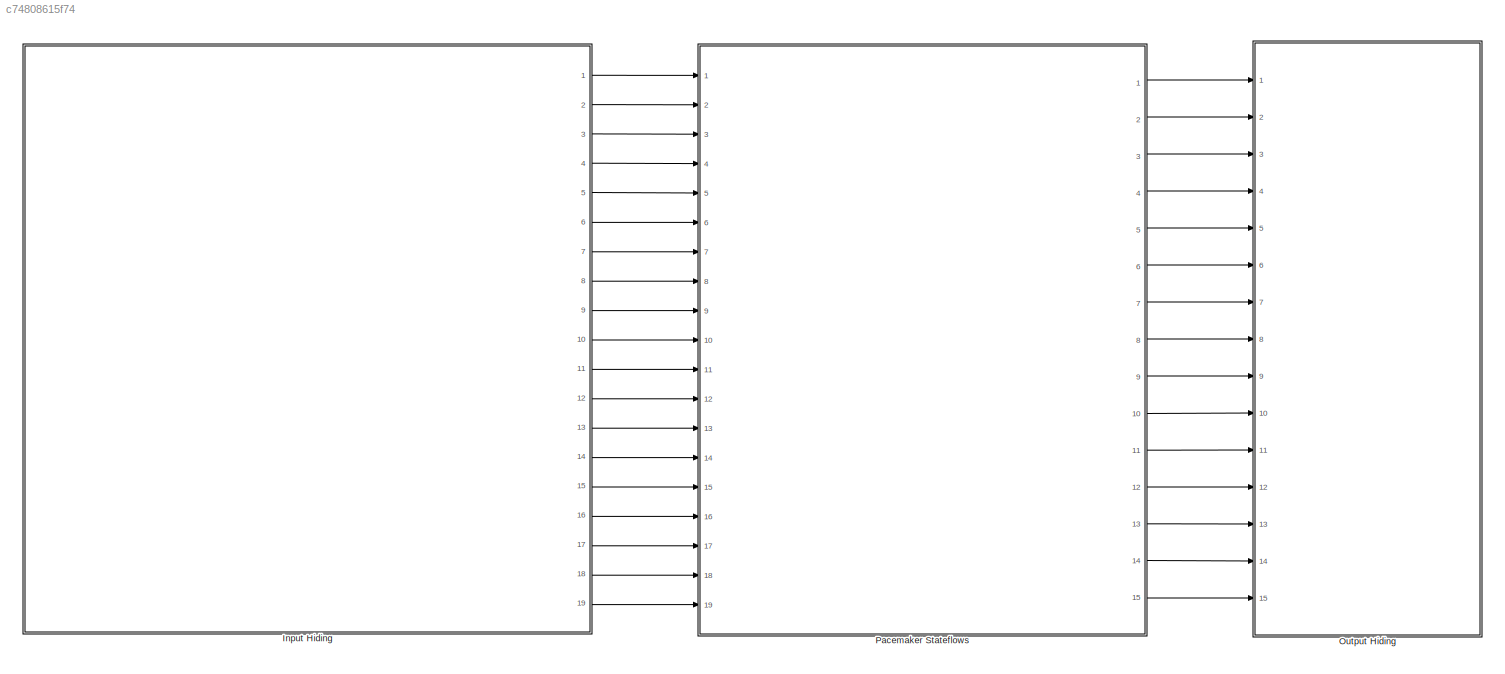
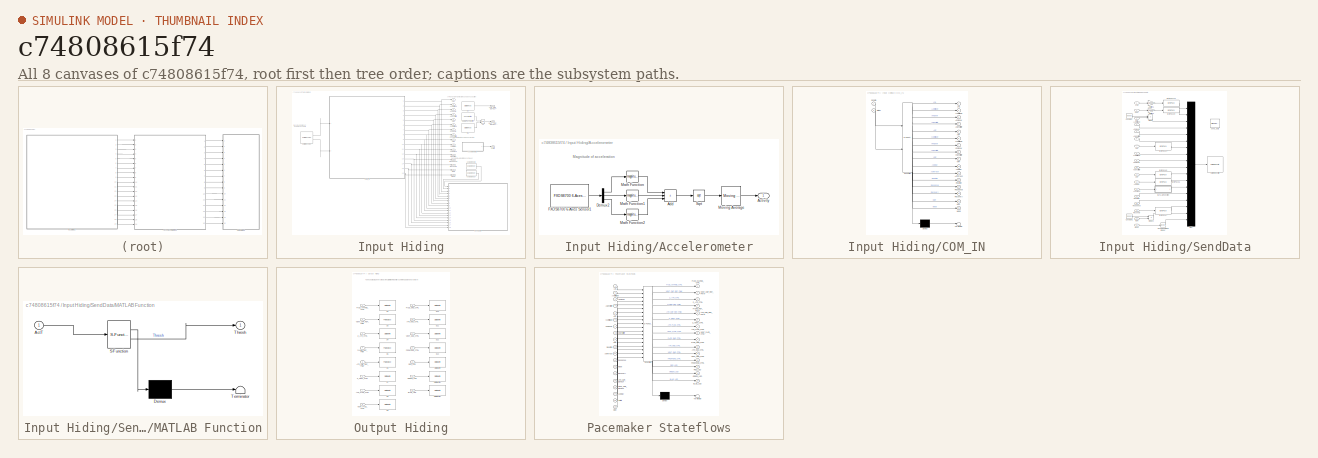
[diagram: thumbnail index - all 8 canvases of the model, root first then tree order]
MODEL slx_c74808615f74
KIND model
CONFIG AbsTol = auto
CONFIG EnableMultiTasking = on
CONFIG FixedStep = 1e-3
CONFIG MaxStep = auto
CONFIG MinStep = auto
CONFIG RelTol = 1e-3
CONFIG SampleTimeConstraint = Unconstrained
CONFIG SolverName = FixedStepAuto
CONFIG StartTime = 0.0
CONFIG StopTime = 10.0
BLOCK [SubSystem] Input Hiding
  Ports = [0, 19]
  RequestExecContextInheritance = off
BLOCK [Outport] Input Hiding/AAmplitude
  OutDataTypeStr = uint8
  Port = 2
BLOCK [Outport] Input Hiding/APulseW
  OutDataTypeStr = uint8
  Port = 3
BLOCK [Outport] Input Hiding/ARP
  OutDataTypeStr = uint16
  Port = 5
BLOCK [Outport] Input Hiding/ASensitivity
  OutDataTypeStr = uint8
  Port = 4
BLOCK [Outport] Input Hiding/ATR_CMP_DETECT
  OutDataTypeStr = boolean
  Port = 17
BLOCK [Outport] Input Hiding/AVDelay
  OutDataTypeStr = uint16
  Port = 10
BLOCK [SubSystem] Input Hiding/Accelerometer
  Ports = [0, 1]
  RequestExecContextInheritance = off
BLOCK [Outport] Input Hiding/Accelerometer/Activity
  OutDataTypeStr = double
  SourceOfInitialOutputValue = Input signal
BLOCK [Sum] Input Hiding/Accelerometer/Add
  IconShape = rectangular
  Inputs = +++
  Ports = [3, 1]
BLOCK [Demux] Input Hiding/Accelerometer/Demux2
  Outputs = 3
  Ports = [1, 3]
BLOCK [Reference] Input Hiding/Accelerometer/FXOS8700 6-Axes Sensor1  REF=frdmk64flib/FXOS8700 6-Axes Sensor
  Ports = [0, 1]
  SourceBlock = frdmk64flib/FXOS8700 6-Axes Sensor
  SourceProductBaseCode = EC_FRDM_K64F
  SourceType = freedomk64f.fxos8700
BLOCK [Math] Input Hiding/Accelerometer/Math Function
  Operator = magnitude^2
  OutDataTypeStr = double
  Ports = [1, 1]
  SignedPower = on
BLOCK [Math] Input Hiding/Accelerometer/Math Function1
  Operator = magnitude^2
  OutDataTypeStr = double
  Ports = [1, 1]
  SignedPower = on
BLOCK [Math] Input Hiding/Accelerometer/Math Function2
  Operator = magnitude^2
  OutDataTypeStr = double
  Ports = [1, 1]
  SignedPower = on
BLOCK [Reference] Input Hiding/Accelerometer/Moving Average  REF=dspstat3/Moving
Average
  Ports = [1, 1]
  SourceBlock = dspstat3/Moving\nAverage
  SourceProductBaseCode = DS
  SourceType = dsp.simulink.MovingAverage
BLOCK [Sqrt] Input Hiding/Accelerometer/Sqrt
BLOCK [Outport] Input Hiding/ActThresh
  OutDataTypeStr = double
  Port = 11
BLOCK [Outport] Input Hiding/Activity
  OutDataTypeStr = double
  Port = 19
BLOCK [Reference] Input Hiding/Analog Input  REF=frdmk64flib/Analog Input
  Ports = [0, 1]
  SourceBlock = frdmk64flib/Analog Input
  SourceProductBaseCode = EC_FRDM_K64F
  SourceType = freedomk64f.AnalogInput
BLOCK [Reference] Input Hiding/Analog Input1  REF=frdmk64flib/Analog Input
  Ports = [0, 1]
  SourceBlock = frdmk64flib/Analog Input
  SourceProductBaseCode = EC_FRDM_K64F
  SourceType = freedomk64f.AnalogInput
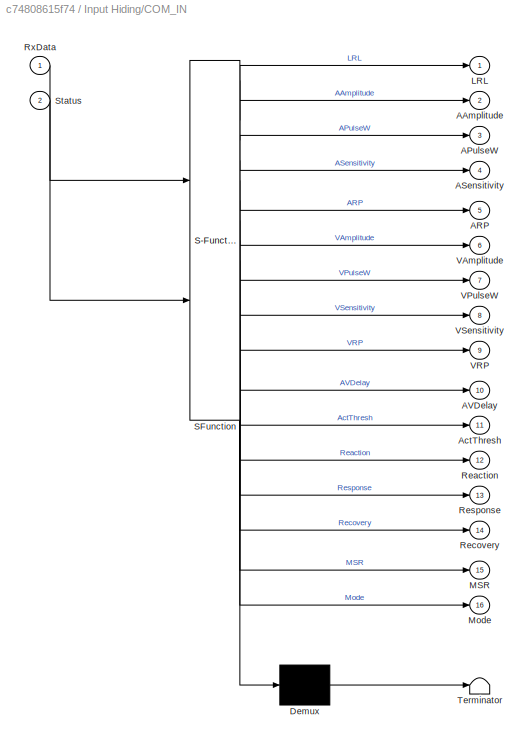
BLOCK [SubSystem] Input Hiding/COM_IN
  ErrorFcn = Stateflow.Translate.translate
  PermitHierarchicalResolution = ExplicitOnly
  Ports = [2, 16]
  RequestExecContextInheritance = off
  SFBlockType = Chart
  TreatAsAtomicUnit = on
BLOCK [Demux] Input Hiding/COM_IN/ Demux 
  Outputs = 1
  Ports = [1, 1]
BLOCK [S-Function] Input Hiding/COM_IN/ SFunction 
  EnableBusSupport = on
  FunctionName = sf_sfun
  PortCounts = [2 17]
  Ports = [2, 17]
  SFcnIsStateOwnerBlock = off
  SFunctionDeploymentMode = off
  Tag = Stateflow S-Function 4
BLOCK [Terminator] Input Hiding/COM_IN/ Terminator 
BLOCK [Outport] Input Hiding/COM_IN/AAmplitude
  Port = 2
BLOCK [Outport] Input Hiding/COM_IN/APulseW
  Port = 3
BLOCK [Outport] Input Hiding/COM_IN/ARP
  Port = 5
BLOCK [Outport] Input Hiding/COM_IN/ASensitivity
  Port = 4
BLOCK [Outport] Input Hiding/COM_IN/AVDelay
  Port = 10
BLOCK [Outport] Input Hiding/COM_IN/ActThresh
  Port = 11
BLOCK [Outport] Input Hiding/COM_IN/LRL
BLOCK [Outport] Input Hiding/COM_IN/MSR
  Port = 15
BLOCK [Outport] Input Hiding/COM_IN/Mode
  Port = 16
BLOCK [Outport] Input Hiding/COM_IN/Reaction
  Port = 12
BLOCK [Outport] Input Hiding/COM_IN/Recovery
  Port = 14
BLOCK [Outport] Input Hiding/COM_IN/Response
  Port = 13
BLOCK [Inport] Input Hiding/COM_IN/RxData
BLOCK [Inport] Input Hiding/COM_IN/Status
  Port = 2
BLOCK [Outport] Input Hiding/COM_IN/VAmplitude
  Port = 6
BLOCK [Outport] Input Hiding/COM_IN/VPulseW
  Port = 7
BLOCK [Outport] Input Hiding/COM_IN/VRP
  Port = 9
BLOCK [Outport] Input Hiding/COM_IN/VSensitivity
  Port = 8
BLOCK [Reference] Input Hiding/D0  REF=frdmk64flib/Digital Read
  Ports = [0, 1]
  SourceBlock = frdmk64flib/Digital Read
  SourceProductBaseCode = EC_FRDM_K64F
  SourceType = freedomk64f.DigitalRead
BLOCK [Reference] Input Hiding/D1  REF=frdmk64flib/Digital Read
  Ports = [0, 1]
  SourceBlock = frdmk64flib/Digital Read
  SourceProductBaseCode = EC_FRDM_K64F
  SourceType = freedomk64f.DigitalRead
BLOCK [Outport] Input Hiding/LRL
  OutDataTypeStr = uint16
BLOCK [Outport] Input Hiding/MSR
  OutDataTypeStr = uint16
  Port = 15
BLOCK [Outport] Input Hiding/Mode
  OutDataTypeStr = uint8
  Port = 16
BLOCK [Reference] Input Hiding/Natural Pace Button  REF=frdmk64flib/Push Button
  Ports = [0, 1]
  SourceBlock = frdmk64flib/Push Button
  SourceProductBaseCode = EC_FRDM_K64F
  SourceType = freedomk64f.PushButton
BLOCK [Logic] Input Hiding/OR
  AllPortsSameDT = off
  IconShape = distinctive
  Operator = OR
  OutDataTypeStr = boolean
  Ports = [2, 1]
BLOCK [Outport] Input Hiding/Reaction
  OutDataTypeStr = uint8
  Port = 12
BLOCK [Outport] Input Hiding/Recovery
  OutDataTypeStr = uint16
  Port = 14
BLOCK [Outport] Input Hiding/Response
  OutDataTypeStr = uint8
  Port = 13
BLOCK [SubSystem] Input Hiding/SendData
  Ports = [18, 0, 0, 1]
  RequestExecContextInheritance = off
  TreatAsAtomicUnit = on
BLOCK [Inport] Input Hiding/SendData/AAmplitude
  Port = 4
BLOCK [Inport] Input Hiding/SendData/APulseW
  Port = 5
BLOCK [Inport] Input Hiding/SendData/ARP
  Port = 7
BLOCK [Inport] Input Hiding/SendData/ASensitivity
  Port = 6
BLOCK [Inport] Input Hiding/SendData/ATR
BLOCK [Inport] Input Hiding/SendData/AVDelay
  Port = 12
BLOCK [Inport] Input Hiding/SendData/ActThresh
  Port = 13
BLOCK [Reference] Input Hiding/SendData/Byte Pack10  REF=etargetslib/Byte Pack
  Ports = [1, 1]
  SourceBlock = etargetslib/Byte Pack
  SourceProductBaseCode = ME
  SourceType = Byte pack
BLOCK [Reference] Input Hiding/SendData/Byte Pack4  REF=etargetslib/Byte Pack
  Ports = [1, 1]
  SourceBlock = etargetslib/Byte Pack
  SourceProductBaseCode = ME
  SourceType = Byte pack
BLOCK [Reference] Input Hiding/SendData/Byte Pack5  REF=etargetslib/Byte Pack
  Ports = [1, 1]
  SourceBlock = etargetslib/Byte Pack
  SourceProductBaseCode = ME
  SourceType = Byte pack
BLOCK [Reference] Input Hiding/SendData/Byte Pack6  REF=etargetslib/Byte Pack
  Ports = [1, 1]
  SourceBlock = etargetslib/Byte Pack
  SourceProductBaseCode = ME
  SourceType = Byte pack
BLOCK [Reference] Input Hiding/SendData/Byte Pack7  REF=etargetslib/Byte Pack
  Ports = [1, 1]
  SourceBlock = etargetslib/Byte Pack
  SourceProductBaseCode = ME
  SourceType = Byte pack
BLOCK [Reference] Input Hiding/SendData/Byte Pack9  REF=etargetslib/Byte Pack
  Ports = [1, 1]
  SourceBlock = etargetslib/Byte Pack
  SourceProductBaseCode = ME
  SourceType = Byte pack
BLOCK [Constant] Input Hiding/SendData/Constant
  Value = 60000
BLOCK [Constant] Input Hiding/SendData/Constant1
  Value = 60000
BLOCK [Reference] Input Hiding/SendData/Decrement Stored Integer  REF=simulink/Additional Math
& Discrete/Additional Math:
Increment - Decrement/Decrement
Stored Integer
  Ports = [1, 1]
  SourceBlock = simulink/Additional Math\n& Discrete/Additional Math:\nIncrement - Decrement/Decrement\nStored Integer
  SourceProductBaseCode = SL
  SourceType = Stored Integer Value Decrement
BLOCK [Product] Input Hiding/SendData/Divide
  Inputs = */
  OutDataTypeStr = uint8
  Ports = [2, 1]
BLOCK [Product] Input Hiding/SendData/Divide1
  Inputs = */
  OutDataTypeStr = uint8
  Ports = [2, 1]
BLOCK [Inport] Input Hiding/SendData/LRL
  Port = 3
BLOCK [SubSystem] Input Hiding/SendData/MATLAB Function
  ErrorFcn = Stateflow.Translate.translate
  PermitHierarchicalResolution = ExplicitOnly
  Ports = [1, 1]
  RequestExecContextInheritance = off
  SFBlockType = MATLAB Function
  TreatAsAtomicUnit = on
BLOCK [Demux] Input Hiding/SendData/MATLAB Function/ Demux 
  Outputs = 1
  Ports = [1, 1]
BLOCK [S-Function] Input Hiding/SendData/MATLAB Function/ SFunction 
  EnableBusSupport = on
  FunctionName = sf_sfun
  PortCounts = [1 2]
  Ports = [1, 2]
  SFcnIsStateOwnerBlock = off
  SFunctionDeploymentMode = off
  Tag = Stateflow S-Function 2
BLOCK [Terminator] Input Hiding/SendData/MATLAB Function/ Terminator 
BLOCK [Inport] Input Hiding/SendData/MATLAB Function/ActT
BLOCK [Outport] Input Hiding/SendData/MATLAB Function/Thresh
BLOCK [Inport] Input Hiding/SendData/MSR
  Port = 17
BLOCK [Inport] Input Hiding/SendData/Mode
  Port = 18
BLOCK [Gain] Input Hiding/SendData/Multiply1
  Gain = 10000
  OutDataTypeStr = uint16
BLOCK [Gain] Input Hiding/SendData/Multiply2
  Gain = 10000
  OutDataTypeStr = uint16
BLOCK [Mux] Input Hiding/SendData/Mux
  DisplayOption = bar
  Inputs = 18
  Ports = [18, 1]
BLOCK [Inport] Input Hiding/SendData/Reaction
  Port = 14
BLOCK [Inport] Input Hiding/SendData/Recovery
  Port = 16
BLOCK [Inport] Input Hiding/SendData/Response
  Port = 15
BLOCK [Reference] Input Hiding/SendData/Serial Transmit1  REF=frdmk64flib/Serial Transmit
  Ports = [1]
  SourceBlock = frdmk64flib/Serial Transmit
  SourceProductBaseCode = EC_FRDM_K64F
  SourceType = freedomk64f.SCIWrite
BLOCK [Inport] Input Hiding/SendData/VAmplitude
  Port = 8
BLOCK [Inport] Input Hiding/SendData/VENT
  Port = 2
BLOCK [Inport] Input Hiding/SendData/VPulseW
  Port = 9
BLOCK [Inport] Input Hiding/SendData/VRP
  Port = 11
BLOCK [Inport] Input Hiding/SendData/VSensitivity
  Port = 10
BLOCK [TriggerPort] Input Hiding/SendData/send_data
  FunctionName = send_data
  IsSimulinkFunction = on
  Ports = []
  StatesWhenEnabling = held
  TriggerType = function-call
  VariantControl = Variant
BLOCK [Reference] Input Hiding/Serial Receive  REF=frdmk64flib/Serial Receive
  Ports = [0, 2]
  SourceBlock = frdmk64flib/Serial Receive
  SourceProductBaseCode = EC_FRDM_K64F
  SourceType = freedomk64f.SCIRead
BLOCK [Outport] Input Hiding/VAmplitude
  OutDataTypeStr = uint8
  Port = 6
BLOCK [Outport] Input Hiding/VENT_CMP_DETECT
  OutDataTypeStr = boolean
  Port = 18
BLOCK [Outport] Input Hiding/VPulseW
  OutDataTypeStr = uint8
  Port = 7
BLOCK [Outport] Input Hiding/VRP
  OutDataTypeStr = uint16
  Port = 9
BLOCK [Outport] Input Hiding/VSensitivity
  OutDataTypeStr = uint8
  Port = 8
BLOCK [SubSystem] Output Hiding
  Ports = [15]
  RequestExecContextInheritance = off
BLOCK [Inport] Output Hiding/ATR_CMP_REF_PWM
  OutDataTypeStr = uint8
  Port = 5
BLOCK [Inport] Output Hiding/ATR_GND_CTRL
  OutDataTypeStr = boolean
  Port = 10
BLOCK [Inport] Output Hiding/ATR_PACE_CTRL
  OutDataTypeStr = boolean
  Port = 7
BLOCK [Inport] Output Hiding/BLUE_LED
  OutDataTypeStr = boolean
  Port = 15
BLOCK [Reference] Output Hiding/D10  REF=frdmk64flib/Digital Write
  Ports = [1]
  SourceBlock = frdmk64flib/Digital Write
  SourceProductBaseCode = EC_FRDM_K64F
  SourceType = freedomk64f.DigitalWrite
BLOCK [Reference] Output Hiding/D11  REF=frdmk64flib/Digital Write
  Ports = [1]
  SourceBlock = frdmk64flib/Digital Write
  SourceProductBaseCode = EC_FRDM_K64F
  SourceType = freedomk64f.DigitalWrite
BLOCK [Reference] Output Hiding/D12  REF=frdmk64flib/Digital Write
  Ports = [1]
  SourceBlock = frdmk64flib/Digital Write
  SourceProductBaseCode = EC_FRDM_K64F
  SourceType = freedomk64f.DigitalWrite
BLOCK [Reference] Output Hiding/D13  REF=frdmk64flib/Digital Write
  Ports = [1]
  SourceBlock = frdmk64flib/Digital Write
  SourceProductBaseCode = EC_FRDM_K64F
  SourceType = freedomk64f.DigitalWrite
BLOCK [Reference] Output Hiding/D2  REF=frdmk64flib/Digital Write
  Ports = [1]
  SourceBlock = frdmk64flib/Digital Write
  SourceProductBaseCode = EC_FRDM_K64F
  SourceType = freedomk64f.DigitalWrite
BLOCK [Reference] Output Hiding/D3  REF=frdmk64flib/PWM Output
  Ports = [1]
  SourceBlock = frdmk64flib/PWM Output
  SourceProductBaseCode = EC_FRDM_K64F
  SourceType = freedomk64f.PWMOutput
BLOCK [Reference] Output Hiding/D4  REF=frdmk64flib/Digital Write
  Ports = [1]
  SourceBlock = frdmk64flib/Digital Write
  SourceProductBaseCode = EC_FRDM_K64F
  SourceType = freedomk64f.DigitalWrite
BLOCK [Reference] Output Hiding/D5  REF=frdmk64flib/PWM Output
  Ports = [1]
  SourceBlock = frdmk64flib/PWM Output
  SourceProductBaseCode = EC_FRDM_K64F
  SourceType = freedomk64f.PWMOutput
BLOCK [Reference] Output Hiding/D6  REF=frdmk64flib/PWM Output
  Ports = [1]
  SourceBlock = frdmk64flib/PWM Output
  SourceProductBaseCode = EC_FRDM_K64F
  SourceType = freedomk64f.PWMOutput
BLOCK [Reference] Output Hiding/D7  REF=frdmk64flib/Digital Write
  Ports = [1]
  SourceBlock = frdmk64flib/Digital Write
  SourceProductBaseCode = EC_FRDM_K64F
  SourceType = freedomk64f.DigitalWrite
BLOCK [Reference] Output Hiding/D8   REF=frdmk64flib/Digital Write
  Ports = [1]
  SourceBlock = frdmk64flib/Digital Write
  SourceProductBaseCode = EC_FRDM_K64F
  SourceType = freedomk64f.DigitalWrite
BLOCK [Reference] Output Hiding/D9  REF=frdmk64flib/Digital Write
  Ports = [1]
  SourceBlock = frdmk64flib/Digital Write
  SourceProductBaseCode = EC_FRDM_K64F
  SourceType = freedomk64f.DigitalWrite
BLOCK [Reference] Output Hiding/Digital Write  REF=frdmk64flib/Digital Write
  Ports = [1]
  SourceBlock = frdmk64flib/Digital Write
  SourceProductBaseCode = EC_FRDM_K64F
  SourceType = freedomk64f.DigitalWrite
BLOCK [Reference] Output Hiding/Digital Write1  REF=frdmk64flib/Digital Write
  Ports = [1]
  SourceBlock = frdmk64flib/Digital Write
  SourceProductBaseCode = EC_FRDM_K64F
  SourceType = freedomk64f.DigitalWrite
BLOCK [Reference] Output Hiding/Digital Write2  REF=frdmk64flib/Digital Write
  Ports = [1]
  SourceBlock = frdmk64flib/Digital Write
  SourceProductBaseCode = EC_FRDM_K64F
  SourceType = freedomk64f.DigitalWrite
BLOCK [Inport] Output Hiding/FRONTEND_CTRL
  OutDataTypeStr = boolean
  Port = 12
BLOCK [Inport] Output Hiding/GREEN_LED
  OutDataTypeStr = boolean
  Port = 14
BLOCK [Inport] Output Hiding/PACE_CHARGE_CTRL
  OutDataTypeStr = boolean
BLOCK [Inport] Output Hiding/PACE_GND_CTRL
  OutDataTypeStr = boolean
  Port = 9
BLOCK [Inport] Output Hiding/PACING_REF_PWM
  OutDataTypeStr = uint8
  Port = 4
BLOCK [Inport] Output Hiding/RED_LED
  OutDataTypeStr = boolean
  Port = 13
BLOCK [Inport] Output Hiding/VENT_CMP_REF_PWM
  OutDataTypeStr = uint8
  Port = 2
BLOCK [Inport] Output Hiding/VENT_GND_CTRL
  OutDataTypeStr = boolean
  Port = 11
BLOCK [Inport] Output Hiding/VENT_PACE_CTRL
  OutDataTypeStr = boolean
  Port = 8
BLOCK [Inport] Output Hiding/Z_ATR_CTRL
  OutDataTypeStr = boolean
  Port = 3
BLOCK [Inport] Output Hiding/Z_VENT_CTRL
  OutDataTypeStr = boolean
  Port = 6
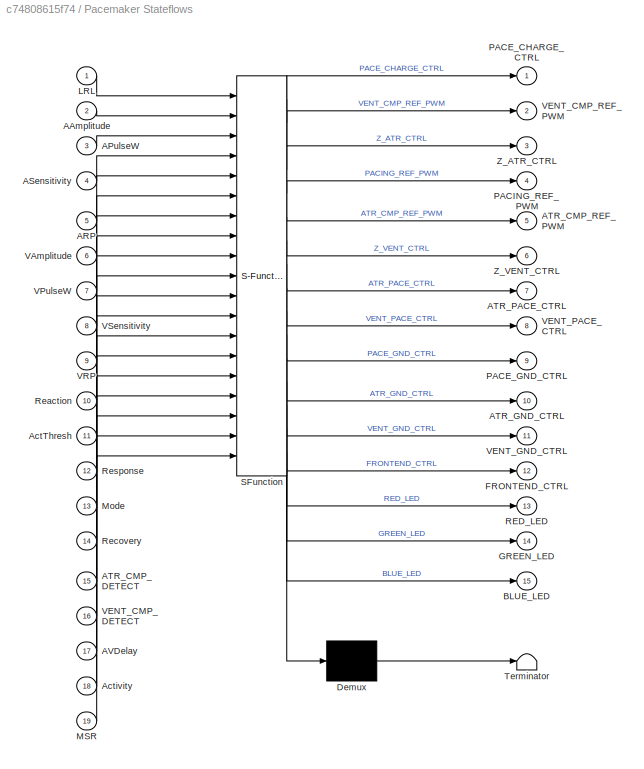
BLOCK [SubSystem] Pacemaker Stateflows
  ErrorFcn = Stateflow.Translate.translate
  PermitHierarchicalResolution = ExplicitOnly
  PortSchema = {"entries":[{"content":{"sides":[{"content":{"connectorIds":["In1","In2","In3","In4","In5","In6","In7","In8","In9","In17","In11","In10","In12","In14","In19","In13","In15","In16","In18"]},"type":"ConnectorPlacement.EquallySpacedRectSide","uuid":"6f24296b-9994-4871-8227-e053a3629335"},{"content":{"connectorIds":["Out1","Out2","Out3","Out4","Out5","Out6","Out7","Out8","Out9","Out10","Out11","Out12","...<+462ch>
  Ports = [19, 15]
  RequestExecContextInheritance = off
  SFBlockType = Chart
  TreatAsAtomicUnit = on
BLOCK [Demux] Pacemaker Stateflows/ Demux 
  Outputs = 1
  Ports = [1, 1]
BLOCK [S-Function] Pacemaker Stateflows/ SFunction 
  EnableBusSupport = on
  FunctionName = sf_sfun
  PortCounts = [19 16]
  Ports = [19, 16]
  SFcnIsStateOwnerBlock = off
  SFunctionDeploymentMode = off
  Tag = Stateflow S-Function 3
BLOCK [Terminator] Pacemaker Stateflows/ Terminator 
BLOCK [Inport] Pacemaker Stateflows/AAmplitude
  Port = 2
BLOCK [Inport] Pacemaker Stateflows/APulseW
  Port = 3
BLOCK [Inport] Pacemaker Stateflows/ARP
  Port = 5
BLOCK [Inport] Pacemaker Stateflows/ASensitivity
  Port = 4
BLOCK [Inport] Pacemaker Stateflows/ATR_CMP_DETECT
  Port = 15
BLOCK [Outport] Pacemaker Stateflows/ATR_CMP_REF_PWM
  Port = 5
BLOCK [Outport] Pacemaker Stateflows/ATR_GND_CTRL
  Port = 10
BLOCK [Outport] Pacemaker Stateflows/ATR_PACE_CTRL
  Port = 7
BLOCK [Inport] Pacemaker Stateflows/AVDelay
  Port = 17
BLOCK [Inport] Pacemaker Stateflows/ActThresh
  Port = 11
BLOCK [Inport] Pacemaker Stateflows/Activity
  Port = 18
BLOCK [Outport] Pacemaker Stateflows/BLUE_LED
  Port = 15
BLOCK [Outport] Pacemaker Stateflows/FRONTEND_CTRL
  Port = 12
BLOCK [Outport] Pacemaker Stateflows/GREEN_LED
  Port = 14
BLOCK [Inport] Pacemaker Stateflows/LRL
BLOCK [Inport] Pacemaker Stateflows/MSR
  Port = 19
BLOCK [Inport] Pacemaker Stateflows/Mode
  Port = 13
BLOCK [Outport] Pacemaker Stateflows/PACE_CHARGE_CTRL
BLOCK [Outport] Pacemaker Stateflows/PACE_GND_CTRL
  Port = 9
BLOCK [Outport] Pacemaker Stateflows/PACING_REF_PWM
  Port = 4
BLOCK [Outport] Pacemaker Stateflows/RED_LED
  Port = 13
BLOCK [Inport] Pacemaker Stateflows/Reaction
  Port = 10
BLOCK [Inport] Pacemaker Stateflows/Recovery
  Port = 14
BLOCK [Inport] Pacemaker Stateflows/Response
  Port = 12
BLOCK [Inport] Pacemaker Stateflows/VAmplitude
  Port = 6
BLOCK [Inport] Pacemaker Stateflows/VENT_CMP_DETECT
  Port = 16
BLOCK [Outport] Pacemaker Stateflows/VENT_CMP_REF_PWM
  Port = 2
BLOCK [Outport] Pacemaker Stateflows/VENT_GND_CTRL
  Port = 11
BLOCK [Outport] Pacemaker Stateflows/VENT_PACE_CTRL
  Port = 8
BLOCK [Inport] Pacemaker Stateflows/VPulseW
  Port = 7
BLOCK [Inport] Pacemaker Stateflows/VRP
  Port = 9
BLOCK [Inport] Pacemaker Stateflows/VSensitivity
  Port = 8
BLOCK [Outport] Pacemaker Stateflows/Z_ATR_CTRL
  Port = 3
BLOCK [Outport] Pacemaker Stateflows/Z_VENT_CTRL
  Port = 6
ANNOTATION Input Hiding: Send EGRAM data to pacemaker
ANNOTATION Input Hiding: ATR and VENT Detect pins and bonus button
ANNOTATION Input Hiding: Accelerometer data averaged smoothly
ANNOTATION Input Hiding: Receive DCM input and process data
ANNOTATION Input Hiding/Accelerometer: Magnitude of acceleration
ANNOTATION Output Hiding: Takes outputs generated by the Stateflow model for use in the DCM and hardware
LINE Input Hiding/Accelerometer/Add:1 -> Input Hiding/Accelerometer/Sqrt:1
LINE Input Hiding/Accelerometer/Demux2:1 -> Input Hiding/Accelerometer/Math Function:1
LINE Input Hiding/Accelerometer/Demux2:2 -> Input Hiding/Accelerometer/Math Function1:1
LINE Input Hiding/Accelerometer/Demux2:3 -> Input Hiding/Accelerometer/Math Function2:1
LINE Input Hiding/Accelerometer/FXOS8700 6-Axes Sensor1:1 -> Input Hiding/Accelerometer/Demux2:1
LINE Input Hiding/Accelerometer/Math Function1:1 -> Input Hiding/Accelerometer/Add:2
LINE Input Hiding/Accelerometer/Math Function2:1 -> Input Hiding/Accelerometer/Add:3
LINE Input Hiding/Accelerometer/Math Function:1 -> Input Hiding/Accelerometer/Add:1
LINE Input Hiding/Accelerometer/Moving Average:1 -> Input Hiding/Accelerometer/Activity:1
LINE Input Hiding/Accelerometer/Sqrt:1 -> Input Hiding/Accelerometer/Moving Average:1
LINE Input Hiding/Accelerometer:1 -> Input Hiding/Activity:1
LINE Input Hiding/Analog Input1:1 -> Input Hiding/SendData:1
LINE Input Hiding/Analog Input:1 -> Input Hiding/SendData:2
NET Input Hiding/COM_IN:1 -> Input Hiding/LRL:1, Input Hiding/SendData:3
NET Input Hiding/COM_IN:10 -> Input Hiding/AVDelay:1, Input Hiding/SendData:12
NET Input Hiding/COM_IN:11 -> Input Hiding/ActThresh:1, Input Hiding/SendData:13
NET Input Hiding/COM_IN:12 -> Input Hiding/Reaction:1, Input Hiding/SendData:14
NET Input Hiding/COM_IN:13 -> Input Hiding/Response:1, Input Hiding/SendData:15
NET Input Hiding/COM_IN:14 -> Input Hiding/Recovery:1, Input Hiding/SendData:16
NET Input Hiding/COM_IN:15 -> Input Hiding/MSR:1, Input Hiding/SendData:17
NET Input Hiding/COM_IN:16 -> Input Hiding/Mode:1, Input Hiding/SendData:18
NET Input Hiding/COM_IN:2 -> Input Hiding/AAmplitude:1, Input Hiding/SendData:4
NET Input Hiding/COM_IN:3 -> Input Hiding/APulseW:1, Input Hiding/SendData:5
NET Input Hiding/COM_IN:4 -> Input Hiding/ASensitivity:1, Input Hiding/SendData:6
NET Input Hiding/COM_IN:5 -> Input Hiding/ARP:1, Input Hiding/SendData:7
NET Input Hiding/COM_IN:6 -> Input Hiding/SendData:8, Input Hiding/VAmplitude:1
NET Input Hiding/COM_IN:7 -> Input Hiding/SendData:9, Input Hiding/VPulseW:1
NET Input Hiding/COM_IN:8 -> Input Hiding/SendData:10, Input Hiding/VSensitivity:1
NET Input Hiding/COM_IN:9 -> Input Hiding/SendData:11, Input Hiding/VRP:1
LINE Input Hiding/D0:1 -> Input Hiding/ATR_CMP_DETECT:1
LINE Input Hiding/D1:1 -> Input Hiding/OR:2
LINE Input Hiding/Natural Pace Button:1 -> Input Hiding/OR:1
LINE Input Hiding/OR:1 -> Input Hiding/VENT_CMP_DETECT:1
LINE Input Hiding/SendData/AAmplitude:1 -> Input Hiding/SendData/Mux:4
LINE Input Hiding/SendData/APulseW:1 -> Input Hiding/SendData/Mux:5
LINE Input Hiding/SendData/ARP:1 -> Input Hiding/SendData/Byte Pack4:1
LINE Input Hiding/SendData/ASensitivity:1 -> Input Hiding/SendData/Mux:6
LINE Input Hiding/SendData/ATR:1 -> Input Hiding/SendData/Multiply1:1
LINE Input Hiding/SendData/AVDelay:1 -> Input Hiding/SendData/Byte Pack6:1
LINE Input Hiding/SendData/ActThresh:1 -> Input Hiding/SendData/MATLAB Function:1
LINE Input Hiding/SendData/Byte Pack10:1 -> Input Hiding/SendData/Mux:1
LINE Input Hiding/SendData/Byte Pack4:1 -> Input Hiding/SendData/Mux:7
LINE Input Hiding/SendData/Byte Pack5:1 -> Input Hiding/SendData/Mux:11
LINE Input Hiding/SendData/Byte Pack6:1 -> Input Hiding/SendData/Mux:12
LINE Input Hiding/SendData/Byte Pack7:1 -> Input Hiding/SendData/Mux:16
LINE Input Hiding/SendData/Byte Pack9:1 -> Input Hiding/SendData/Mux:2
LINE Input Hiding/SendData/Constant1:1 -> Input Hiding/SendData/Divide1:1
LINE Input Hiding/SendData/Constant:1 -> Input Hiding/SendData/Divide:1
LINE Input Hiding/SendData/Decrement Stored Integer:1 -> Input Hiding/SendData/Mux:18
LINE Input Hiding/SendData/Divide1:1 -> Input Hiding/SendData/Mux:17
LINE Input Hiding/SendData/Divide:1 -> Input Hiding/SendData/Mux:3
LINE Input Hiding/SendData/LRL:1 -> Input Hiding/SendData/Divide:2
LINE Input Hiding/SendData/MATLAB Function:1 -> Input Hiding/SendData/Mux:13
LINE Input Hiding/SendData/MSR:1 -> Input Hiding/SendData/Divide1:2
LINE Input Hiding/SendData/Mode:1 -> Input Hiding/SendData/Decrement Stored Integer:1
LINE Input Hiding/SendData/Multiply1:1 -> Input Hiding/SendData/Byte Pack10:1
LINE Input Hiding/SendData/Multiply2:1 -> Input Hiding/SendData/Byte Pack9:1
LINE Input Hiding/SendData/Mux:1 -> Input Hiding/SendData/Serial Transmit1:1
LINE Input Hiding/SendData/Reaction:1 -> Input Hiding/SendData/Mux:14
LINE Input Hiding/SendData/Recovery:1 -> Input Hiding/SendData/Byte Pack7:1
LINE Input Hiding/SendData/Response:1 -> Input Hiding/SendData/Mux:15
LINE Input Hiding/SendData/VAmplitude:1 -> Input Hiding/SendData/Mux:8
LINE Input Hiding/SendData/VENT:1 -> Input Hiding/SendData/Multiply2:1
LINE Input Hiding/SendData/VPulseW:1 -> Input Hiding/SendData/Mux:9
LINE Input Hiding/SendData/VRP:1 -> Input Hiding/SendData/Byte Pack5:1
LINE Input Hiding/SendData/VSensitivity:1 -> Input Hiding/SendData/Mux:10
LINE Input Hiding/Serial Receive:1 -> Input Hiding/COM_IN:1
LINE Input Hiding/Serial Receive:2 -> Input Hiding/COM_IN:2
LINE Input Hiding:1 -> Pacemaker Stateflows:1
LINE Input Hiding:10 -> Pacemaker Stateflows:17
LINE Input Hiding:11 -> Pacemaker Stateflows:11
LINE Input Hiding:12 -> Pacemaker Stateflows:10
LINE Input Hiding:13 -> Pacemaker Stateflows:12
LINE Input Hiding:14 -> Pacemaker Stateflows:14
LINE Input Hiding:15 -> Pacemaker Stateflows:19
LINE Input Hiding:16 -> Pacemaker Stateflows:13
LINE Input Hiding:17 -> Pacemaker Stateflows:15
LINE Input Hiding:18 -> Pacemaker Stateflows:16
LINE Input Hiding:19 -> Pacemaker Stateflows:18
LINE Input Hiding:2 -> Pacemaker Stateflows:2
LINE Input Hiding:3 -> Pacemaker Stateflows:3
LINE Input Hiding:4 -> Pacemaker Stateflows:4
LINE Input Hiding:5 -> Pacemaker Stateflows:5
LINE Input Hiding:6 -> Pacemaker Stateflows:6
LINE Input Hiding:7 -> Pacemaker Stateflows:7
LINE Input Hiding:8 -> Pacemaker Stateflows:8
LINE Input Hiding:9 -> Pacemaker Stateflows:9
LINE Output Hiding/ATR_CMP_REF_PWM:1 -> Output Hiding/D6:1
LINE Output Hiding/ATR_GND_CTRL:1 -> Output Hiding/D11:1
LINE Output Hiding/ATR_PACE_CTRL:1 -> Output Hiding/D8 :1
LINE Output Hiding/BLUE_LED:1 -> Output Hiding/Digital Write1:1
LINE Output Hiding/FRONTEND_CTRL:1 -> Output Hiding/D13:1
LINE Output Hiding/GREEN_LED:1 -> Output Hiding/Digital Write2:1
LINE Output Hiding/PACE_CHARGE_CTRL:1 -> Output Hiding/D2:1
LINE Output Hiding/PACE_GND_CTRL:1 -> Output Hiding/D10:1
LINE Output Hiding/PACING_REF_PWM:1 -> Output Hiding/D5:1
LINE Output Hiding/RED_LED:1 -> Output Hiding/Digital Write:1
LINE Output Hiding/VENT_CMP_REF_PWM:1 -> Output Hiding/D3:1
LINE Output Hiding/VENT_GND_CTRL:1 -> Output Hiding/D12:1
LINE Output Hiding/VENT_PACE_CTRL:1 -> Output Hiding/D9:1
LINE Output Hiding/Z_ATR_CTRL:1 -> Output Hiding/D4:1
LINE Output Hiding/Z_VENT_CTRL:1 -> Output Hiding/D7:1
LINE Pacemaker Stateflows:1 -> Output Hiding:1
LINE Pacemaker Stateflows:10 -> Output Hiding:10
LINE Pacemaker Stateflows:11 -> Output Hiding:11
LINE Pacemaker Stateflows:12 -> Output Hiding:12
LINE Pacemaker Stateflows:13 -> Output Hiding:13
LINE Pacemaker Stateflows:14 -> Output Hiding:14
LINE Pacemaker Stateflows:15 -> Output Hiding:15
LINE Pacemaker Stateflows:2 -> Output Hiding:2
LINE Pacemaker Stateflows:3 -> Output Hiding:3
LINE Pacemaker Stateflows:4 -> Output Hiding:4
LINE Pacemaker Stateflows:5 -> Output Hiding:5
LINE Pacemaker Stateflows:6 -> Output Hiding:6
LINE Pacemaker Stateflows:7 -> Output Hiding:7
LINE Pacemaker Stateflows:8 -> Output Hiding:8
LINE Pacemaker Stateflows:9 -> Output Hiding:9
note: NET lines group one-source signal fan-out (src -> all destinations, sorted); 1:1 wires keep LINE
CHART Input Hiding/SendData/MATLAB Function states=1 transitions=1
  STATE_LABEL 'eML_blk_kernel()'
  STATE_LABEL 'SCRIPT:\nfunction Thresh = fcn(ActT)\nThresh = uint8((ActT - 1)*2.5);\n'
CHART Pacemaker Stateflows states=151 transitions=135
  STATE_LABEL '<!DOCTYPE HTML PUBLIC "-//W3C//DTD HTML 4.0//EN" "http://www.w3.org/TR/REC-html40/strict.dtd">\n<html><head><meta name="qrichtext" content="1" /><style type="text/css">\np, li { white-space: pre-wrap; }\n</style></head><body align="left" style=" font-family:\'Helvetica\'; font-size:12px; font-weight:400; font-style:normal;">\n<p align="left" style=" margin-top:0px; margin-bottom:0px; margin-left:0px; ma...<+179ch>'
  STATE_LABEL 'AOO\nentry: Z_VENT_CTRL = false; Z_ATR_CTRL = false; PACING_REF_PWM = AAmplitude;\n VENT_PACE_CTRL = false; VENT_GND_CTRL = false; PACE_GND_CTRL = true;\n'
  STATE_LABEL '<!DOCTYPE HTML PUBLIC "-//W3C//DTD HTML 4.0//EN" "http://www.w3.org/TR/REC-html40/strict.dtd">\n<html><head><meta name="qrichtext" content="1" /><style type="text/css">\np, li { white-space: pre-wrap; }\n</style></head><body align="left" style=" font-family:\'Helvetica\'; font-size:12px; font-weight:400; font-style:normal;">\n<p align="left" style=" margin-top:0px; margin-bottom:0px; margin-left:0px; ma...<+372ch>'  <repeated x4 — deduplicated; at blocks: Pacemaker Stateflows>
  STATE_LABEL '<!DOCTYPE HTML PUBLIC "-//W3C//DTD HTML 4.0//EN" "http://www.w3.org/TR/REC-html40/strict.dtd">\n<html><head><meta name="qrichtext" content="1" /><style type="text/css">\np, li { white-space: pre-wrap; }\n</style></head><body align="left" style=" font-family:\'Helvetica\'; font-size:12px; font-weight:400; font-style:normal;">\n<p align="left" style=" margin-top:0px; margin-bottom:0px; margin-left:0px; ma...<+136ch>'
  STATE_LABEL '<!DOCTYPE HTML PUBLIC "-//W3C//DTD HTML 4.0//EN" "http://www.w3.org/TR/REC-html40/strict.dtd">\n<html><head><meta name="qrichtext" content="1" /><style type="text/css">\np, li { white-space: pre-wrap; }\n</style></head><body align="left" style=" font-family:\'Helvetica\'; font-size:12px; font-weight:400; font-style:normal;">\n<p align="left" style=" margin-top:0px; margin-bottom:0px; margin-left:0px; ma...<+142ch>'  <repeated x4 — deduplicated; at blocks: Pacemaker Stateflows>
  STATE_LABEL 'PACE_ATR\nentry:\nPACE_CHARGE_CTRL = false;\nATR_GND_CTRL = false;\nATR_PACE_CTRL = true;\nRED_LED = true;'
  STATE_LABEL 'C22_CHARGE\nentry:\nPACE_CHARGE_CTRL = true;\nATR_PACE_CTRL = false;\nATR_GND_CTRL  = true;\nRED_LED = false;'
  STATE_LABEL '<!DOCTYPE HTML PUBLIC "-//W3C//DTD HTML 4.0//EN" "http://www.w3.org/TR/REC-html40/strict.dtd">\n<html><head><meta name="qrichtext" content="1" /><style type="text/css">\np, li { white-space: pre-wrap; }\n</style></head><body align="left" style=" font-family:\'Helvetica\'; font-size:12px; font-weight:400; font-style:normal;">\n<p align="left" style=" margin-top:0px; margin-bottom:0px; margin-left:0px; ma...<+150ch>'  <repeated x5 — deduplicated; at blocks: Pacemaker Stateflows>
  STATE_LABEL 'after(APulseW,msec)'
  STATE_LABEL 'after(LRL-uint16(APulseW),msec)'
  STATE_LABEL '<!DOCTYPE HTML PUBLIC "-//W3C//DTD HTML 4.0//EN" "http://www.w3.org/TR/REC-html40/strict.dtd">\n<html><head><meta name="qrichtext" content="1" /><style type="text/css">\np, li { white-space: pre-wrap; }\n</style></head><body align="left" style=" font-family:\'Helvetica\'; font-size:12px; font-weight:400; font-style:normal;">\n<p align="left" style=" margin-top:0px; margin-bottom:0px; margin-left:0px; ma...<+136ch>'
  STATE_LABEL 'PACE_ATR\nentry:\nPACE_CHARGE_CTRL = false;\nATR_GND_CTRL = false;\nATR_PACE_CTRL = true;\nRED_LED = true;'
  STATE_LABEL 'C22_CHARGE\nentry:\nPACE_CHARGE_CTRL = true;\nATR_PACE_CTRL = false;\nATR_GND_CTRL  = true;\nRED_LED = false;'
  STATE_LABEL 'MODE_SELECTION\nentry:\nGREEN_LED = false;\nRED_LED = false;\nBLUE_LED = false;\nFRONTEND_CTRL = false;\nPACING_REF_PWM = 0;\nATR_CMP_REF_PWM = 0;\nVENT_CMP_REF_PWM = 0;\nPACE_CHARGE_CTRL= false;\nPACE_GND_CTRL= false;\nATR_PACE_CTRL = false;\nATR_GND_CTRL = false;\nVENT_PACE_CTRL = false;\nVENT_GND_CTRL = false;\nZ_ATR_CTRL = false;\nZ_VENT_CTRL = false;'
  STATE_LABEL '<!DOCTYPE HTML PUBLIC "-//W3C//DTD HTML 4.0//EN" "http://www.w3.org/TR/REC-html40/strict.dtd">\n<html><head><meta name="qrichtext" content="1" /><style type="text/css">\np, li { white-space: pre-wrap; }\n</style></head><body align="left" style=" font-family:\'Helvetica\'; font-size:12px; font-weight:400; font-style:normal;">\n<p align="left" style=" margin-top:0px; margin-bottom:0px; margin-left:0px; ma...<+357ch>'
  STATE_LABEL '<!DOCTYPE HTML PUBLIC "-//W3C//DTD HTML 4.0//EN" "http://www.w3.org/TR/REC-html40/strict.dtd">\n<html><head><meta name="qrichtext" content="1" /><style type="text/css">\np, li { white-space: pre-wrap; }\n</style></head><body align="left" style=" font-family:\'Helvetica\'; font-size:12px; font-weight:400; font-style:normal;">\n<p align="left" style=" margin-top:0px; margin-bottom:0px; margin-left:0px; ma...<+357ch>'
  STATE_LABEL 'VOO\nentry: Z_ATR_CTRL = false; Z_VENT_CTRL = false; PACING_REF_PWM = VAmplitude;\n ATR_PACE_CTRL = false; ATR_GND_CTRL = false; PACE_GND_CTRL = true;\n'
  STATE_LABEL '<!DOCTYPE HTML PUBLIC "-//W3C//DTD HTML 4.0//EN" "http://www.w3.org/TR/REC-html40/strict.dtd">\n<html><head><meta name="qrichtext" content="1" /><style type="text/css">\np, li { white-space: pre-wrap; }\n</style></head><body align="left" style=" font-family:\'Helvetica\'; font-size:12px; font-weight:400; font-style:normal;">\n<p align="left" style=" margin-top:0px; margin-bottom:0px; margin-left:0px; ma...<+139ch>'
  STATE_LABEL 'PACE_VENT\nentry:\nPACE_CHARGE_CTRL = false;\nVENT_GND_CTRL = false;\nVENT_PACE_CTRL = true;\nBLUE_LED = true;'
  STATE_LABEL 'C22_CHARGE\nentry:\nVENT_PACE_CTRL = false;\nVENT_GND_CTRL = true;\nPACE_CHARGE_CTRL = true;\nBLUE_LED = false;'
  STATE_LABEL 'after(VPulseW,msec)'
  STATE_LABEL 'after(LRL-uint16(VPulseW),msec)'
  STATE_LABEL '<!DOCTYPE HTML PUBLIC "-//W3C//DTD HTML 4.0//EN" "http://www.w3.org/TR/REC-html40/strict.dtd">\n<html><head><meta name="qrichtext" content="1" /><style type="text/css">\np, li { white-space: pre-wrap; }\n</style></head><body align="left" style=" font-family:\'Helvetica\'; font-size:12px; font-weight:400; font-style:normal;">\n<p align="left" style=" margin-top:0px; margin-bottom:0px; margin-left:0px; ma...<+139ch>'
  STATE_LABEL 'PACE_VENT\nentry:\nPACE_CHARGE_CTRL = false;\nVENT_GND_CTRL = false;\nVENT_PACE_CTRL = true;\nBLUE_LED = true;'
  STATE_LABEL 'C22_CHARGE\nentry:\nVENT_PACE_CTRL = false;\nVENT_GND_CTRL = true;\nPACE_CHARGE_CTRL = true;\nBLUE_LED = false;'
  STATE_LABEL '<!DOCTYPE HTML PUBLIC "-//W3C//DTD HTML 4.0//EN" "http://www.w3.org/TR/REC-html40/strict.dtd">\n<html><head><meta name="qrichtext" content="1" /><style type="text/css">\np, li { white-space: pre-wrap; }\n</style></head><body align="left" style=" font-family:\'Helvetica\'; font-size:12px; font-weight:400; font-style:normal;">\n<p align="left" style=" margin-top:0px; margin-bottom:0px; margin-left:0px; ma...<+131ch>'
  STATE_LABEL '<!DOCTYPE HTML PUBLIC "-//W3C//DTD HTML 4.0//EN" "http://www.w3.org/TR/REC-html40/strict.dtd">\n<html><head><meta name="qrichtext" content="1" /><style type="text/css">\np, li { white-space: pre-wrap; }\n</style></head><body align="left" style=" font-family:\'Helvetica\'; font-size:12px; font-weight:400; font-style:normal;">\n<p align="left" style=" margin-top:0px; margin-bottom:0px; margin-left:0px; ma...<+131ch>'
  STATE_LABEL 'AAI\nentry: VENT_PACE_CTRL = false; VENT_GND_CTRL = false; PACE_GND_CTRL = true;\n Z_VENT_CTRL = false; Z_ATR_CTRL = false; FRONTEND_CTRL = true;\n PACING_REF_PWM = AAmplitude; ATR_CMP_REF_PWM=ASensitivity;'
  STATE_LABEL 'PACE_ATR\nentry:\n%discharge C22 capacitor (pacing)\nATR_PACE_CTRL = true;\nPACE_CHARGE_CTRL = false;\nATR_GND_CTRL = false;\nRED_LED = true;\n'
  STATE_LABEL 'C22_CHARGE\nentry:\n%discharge C21 capacitor (blocking)\nATR_PACE_CTRL = false;\nPACE_CHARGE_CTRL = true;\nATR_GND_CTRL = true;\n'
CHART Input Hiding/COM_IN states=8 transitions=8
  STATE_LABEL 'ENTRY\n% Initialize Values\nentry:\nLRL = 60000/60;\nAAmplitude = 100;\nAPulseW = 10;\nASensitivity = 80;\nARP = 250;\nVAmplitude = 100;\nVPulseW = 10;\nVSensitivity = 80;\nVRP = 320;\nAVDelay = 50;\nActThresh = 1+0*0.4;\nReaction = 16;\nResponse = 10;\nRecovery = 500;\nMSR = 60000/120;\nMode = 4;\n'
  STATE_LABEL "SET_VALUES\n% Set Values Through DCM\nentry:\nLRL = 60000/uint16(RxData(3));\nAAmplitude = RxData(4);\nAPulseW = RxData(5);\nASensitivity = RxData(6);\nARP = typecast(RxData(7:8),'uint16');\nVAmplitude = RxData(9);\nVPulseW = RxData(10);\nVSensitivity = RxData(11);\nVRP = typecast(RxData(12:13),'uint16');\nAVDelay = typecast(RxData(14:15),'uint16');\nActThresh = 1+double(RxData(16))*0.4;\nReaction = RxData(17);...<+123ch>"
  STATE_LABEL 'Set values if\nfirst 2 RxData\nbytes are 12, 5'
  STATE_LABEL 'Set initial\nvalues upon\nentry'
  STATE_LABEL 'STANDBY\n%Wait for data\n'
  STATE_LABEL 'Check if all bytes have been received'
  STATE_LABEL 'SEND_PARAMETER\nentry: send_data();'
  STATE_LABEL 'Send data if first 2 RxData bytes are 12, 15'
CHART  states=0 transitions=0
CHART  states=0 transitions=0
CHART  states=0 transitions=0
